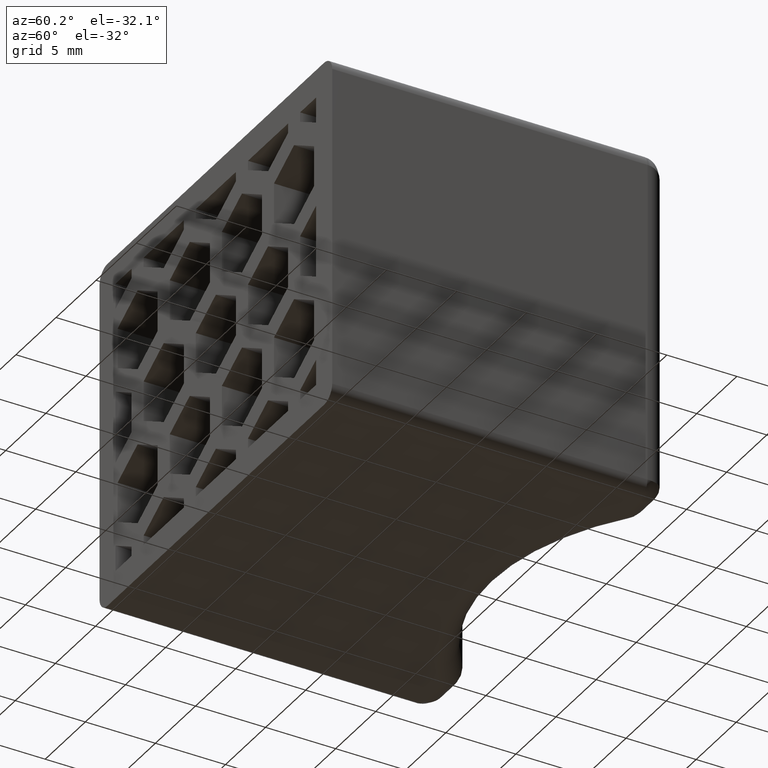
[diagram: clean part render]
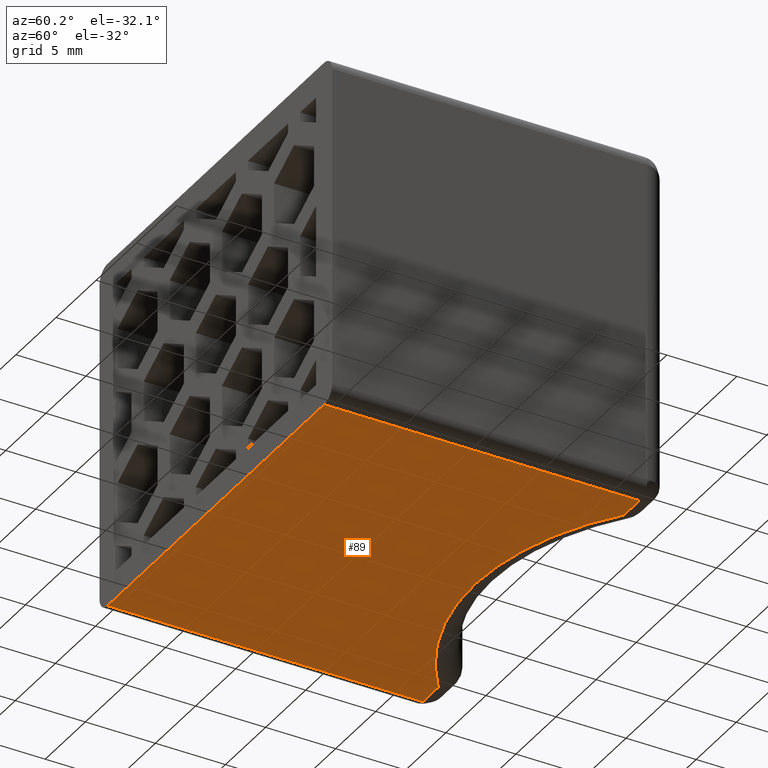
[diagram: same view with one face highlighted and labeled with its STEP entity id]
A machine part, auxiliary view. The second image highlights one B-rep face of the part: STEP entity #89.
In plain terms, the highlighted planar face has unit normal (0, 0, -1).
Its self-contained STEP definition (entity closure, byte-faithful):
#89 = ADVANCED_FACE( '', ( #344 ), #345, .T. );
#344 = FACE_OUTER_BOUND( '', #928, .T. );
#345 = PLANE( '', #929 );
#928 = EDGE_LOOP( '', ( #1972, #1973, #1974, #1975, #1976, #1977 ) );
#929 = AXIS2_PLACEMENT_3D( '', #1978, #1979, #1980 );
#1972 = ORIENTED_EDGE( '', *, *, #3574, .T. );
#1973 = ORIENTED_EDGE( '', *, *, #3572, .T. );
#1974 = ORIENTED_EDGE( '', *, *, #3575, .T. );
#1975 = ORIENTED_EDGE( '', *, *, #3576, .T. );
#1976 = ORIENTED_EDGE( '', *, *, #3577, .T. );
#1977 = ORIENTED_EDGE( '', *, *, #3514, .F. );
#1978 = CARTESIAN_POINT( '', ( 0.000000000000000, 37.2500000000000, -12.5000000000000 ) );
#1979 = DIRECTION( '', ( 0.000000000000000, 0.000000000000000, -1.00000000000000 ) );
#1980 = DIRECTION( '', ( 0.000000000000000, 1.00000000000000, 0.000000000000000 ) );
#3514 = EDGE_CURVE( '', #4161, #4163, #4164, .T. );
#3572 = EDGE_CURVE( '', #4263, #4267, #4269, .F. );
#3574 = EDGE_CURVE( '', #4161, #4263, #4271, .F. );
#3575 = EDGE_CURVE( '', #4267, #4272, #4273, .F. );
#3576 = EDGE_CURVE( '', #4272, #4274, #4275, .F. );
#3577 = EDGE_CURVE( '', #4274, #4163, #4276, .F. );
#4161 = VERTEX_POINT( '', #5146 );
#4163 = VERTEX_POINT( '', #5148 );
#4164 = LINE( '', #5149, #5150 );
#4263 = VERTEX_POINT( '', #5295 );
#4267 = VERTEX_POINT( '', #5299 );
#4269 = LINE( '', #5301, #5302 );
#4271 = LINE( '', #5305, #5306 );
#4272 = VERTEX_POINT( '', #5307 );
#4273 = CIRCLE( '', #5308, 18.7500000000000 );
#4274 = VERTEX_POINT( '', #5309 );
#4275 = LINE( '', #5310, #5311 );
#4276 = LINE( '', #5312, #5313 );
#5146 = CARTESIAN_POINT( '', ( -13.5000000000000, -6.93889390390723E-015, -12.5000000000000 ) );
#5148 = CARTESIAN_POINT( '', ( 13.5000000000000, -6.93889390390723E-015, -12.5000000000000 ) );
#5149 = CARTESIAN_POINT( '', ( -38.0000000000000, -6.93889390390723E-015, -12.5000000000000 ) );
#5150 = VECTOR( '', #6178, 1000.00000000000 );
#5295 = CARTESIAN_POINT( '', ( -13.5000000000000, 22.5000000000000, -12.5000000000000 ) );
#5299 = CARTESIAN_POINT( '', ( -11.5758369027905, 22.5000000000002, -12.5000000000000 ) );
#5301 = CARTESIAN_POINT( '', ( 0.000000000000000, 22.5000000000000, -12.5000000000000 ) );
#5302 = VECTOR( '', #6258, 1000.00000000000 );
#5305 = CARTESIAN_POINT( '', ( -13.5000000000000, 37.2500000000000, -12.5000000000000 ) );
#5306 = VECTOR( '', #6260, 1000.00000000000 );
#5307 = CARTESIAN_POINT( '', ( 11.5758369027905, 22.5000000000000, -12.5000000000000 ) );
#5308 = AXIS2_PLACEMENT_3D( '', #6261, #6262, #6263 );
#5309 = CARTESIAN_POINT( '', ( 13.5000000000000, 22.5000000000000, -12.5000000000000 ) );
#5310 = CARTESIAN_POINT( '', ( 0.000000000000000, 22.5000000000000, -12.5000000000000 ) );
#5311 = VECTOR( '', #6264, 1000.00000000000 );
#5312 = CARTESIAN_POINT( '', ( 13.5000000000000, 37.2500000000000, -12.5000000000000 ) );
#5313 = VECTOR( '', #6265, 1000.00000000000 );
#6178 = DIRECTION( '', ( 1.00000000000000, 0.000000000000000, 0.000000000000000 ) );
#6258 = DIRECTION( '', ( -1.00000000000000, 0.000000000000000, 0.000000000000000 ) );
#6260 = DIRECTION( '', ( -6.07153216591882E-017, -1.00000000000000, 0.000000000000000 ) );
#6261 = CARTESIAN_POINT( '', ( 0.000000000000000, 37.2500000000000, -12.5000000000000 ) );
#6262 = DIRECTION( '', ( 0.000000000000000, 0.000000000000000, -1.00000000000000 ) );
#6263 = DIRECTION( '', ( -1.00000000000000, 0.000000000000000, 0.000000000000000 ) );
#6264 = DIRECTION( '', ( -1.00000000000000, 0.000000000000000, 0.000000000000000 ) );
#6265 = DIRECTION( '', ( 6.07153216591882E-017, 1.00000000000000, 0.000000000000000 ) );